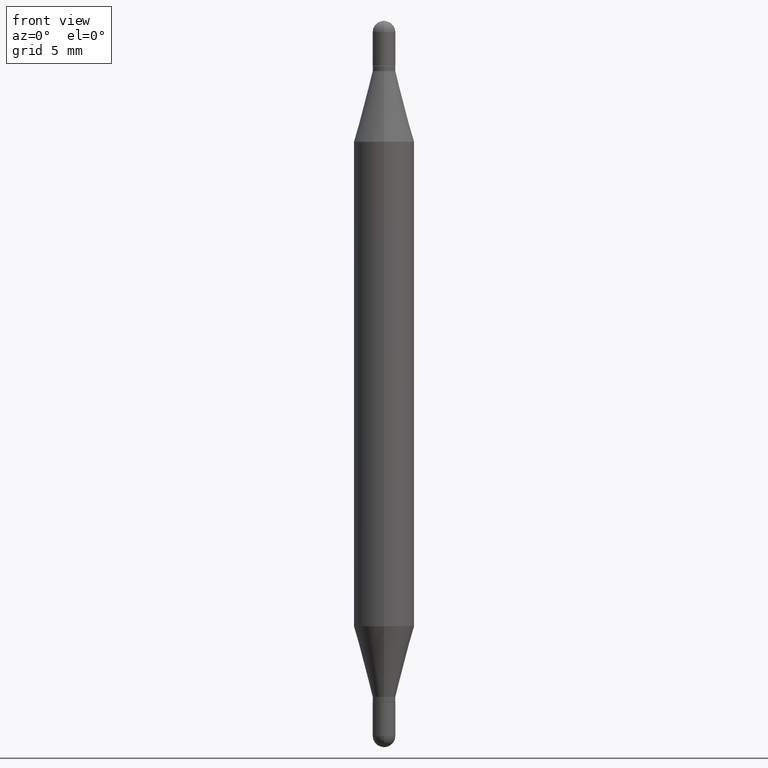
[diagram: clean part render]
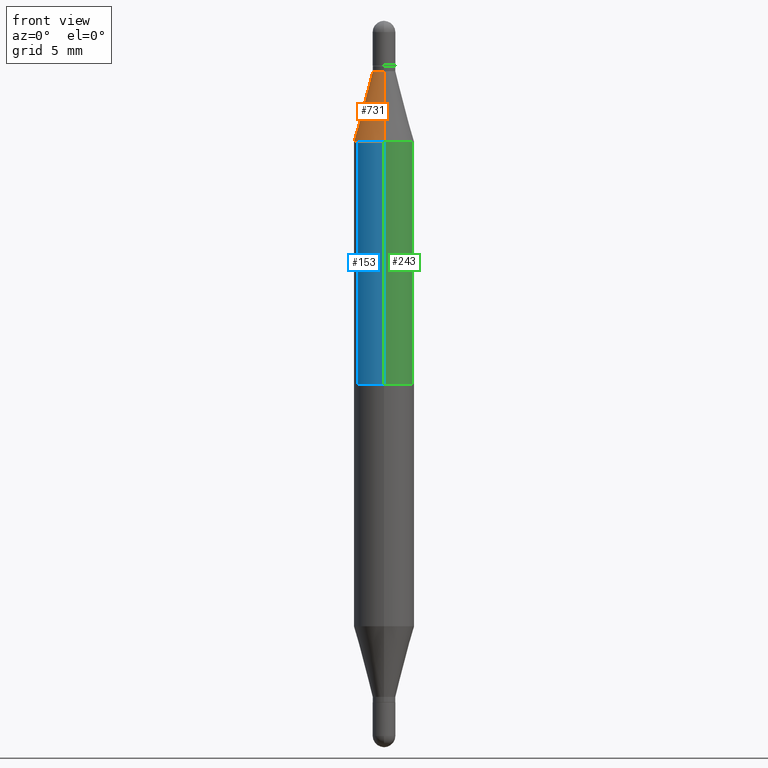
[diagram: same view with three faces highlighted in distinct colors, each labeled with its STEP entity id]
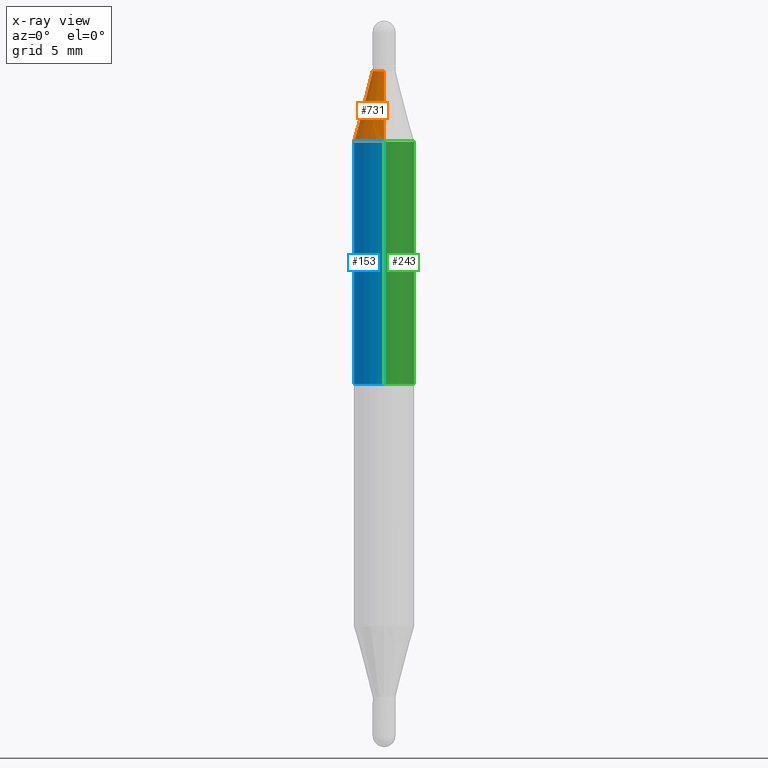
[diagram: x-ray of the same camera — body ghosted, the three highlighted faces saturated]
A machine part, front view with three faces highlighted in distinct colors.
The next image is the same camera in x-ray (body ghosted, the three faces saturated) — at least one of them is partly hidden behind the body in this view.
Their STEP definitions:

[orange] entity #731 — the highlighted conical surface has half-angle 15 deg.
#24 = EDGE_CURVE ( 'NONE', #573, #770, #670, .T. ) ;
#30 = EDGE_CURVE ( 'NONE', #675, #843, #807, .T. ) ;
#35 = CARTESIAN_POINT ( 'NONE',  ( 3.414017849035659863E-29, -3.705747078021827002E-16, -0.1040000000000000369 ) ) ;
#61 = CARTESIAN_POINT ( 'NONE',  ( 3.057608608953349206E-29, -8.777032717339053700E-16, -0.2497365840355653399 ) ) ;
#84 = ORIENTED_EDGE ( 'NONE', *, *, #890, .F. ) ;
#106 = CARTESIAN_POINT ( 'NONE',  ( 3.414017849035659863E-29, -3.705747078021827002E-16, -0.1040000000000000369 ) ) ;
#110 = AXIS2_PLACEMENT_3D ( 'NONE', #106, #708, #508 ) ;
#146 = CARTESIAN_POINT ( 'NONE',  ( -1.637504747917063431E-16, -0.02345000000000002291, -0.1039999999999999536 ) ) ;
#178 = CARTESIAN_POINT ( 'NONE',  ( 4.287811248607512417E-16, 0.06249999999999911876, -0.2497365840355655620 ) ) ;
#218 = DIRECTION ( 'NONE',  ( 2.445571525097176627E-29, 3.479761566306266964E-15, 1.000000000000000000 ) ) ;
#232 = ORIENTED_EDGE ( 'NONE', *, *, #663, .T. ) ;
#269 = AXIS2_PLACEMENT_3D ( 'NONE', #35, #367, #385 ) ;
#294 = CONICAL_SURFACE ( 'NONE', #110, 0.02344999999999965168, 0.2617993877991505736 ) ;
#323 = EDGE_LOOP ( 'NONE', ( #1106, #232, #897, #84 ) ) ;
#367 = DIRECTION ( 'NONE',  ( 2.445571525097176627E-29, 3.479761566306266964E-15, 1.000000000000000000 ) ) ;
#385 = DIRECTION ( 'NONE',  ( -6.982962677686265133E-15, -1.000000000000000000, 3.640522379616609463E-15 ) ) ;
#393 = DIRECTION ( 'NONE',  ( -6.982962677686265922E-15, -1.000000000000000000, 3.278217592397115862E-15 ) ) ;
#395 = LINE ( 'NONE', #146, #439 ) ;
#439 = VECTOR ( 'NONE', #554, 39.37007874015748143 ) ;
#441 = FACE_OUTER_BOUND ( 'NONE', #323, .T. ) ;
#456 = DIRECTION ( 'NONE',  ( 1.775627540710967075E-15, 0.2588190451025184635, -0.9659258262890689783 ) ) ;
#467 = CARTESIAN_POINT ( 'NONE',  ( 1.608786780477752056E-16, 0.02344999999999928045, -0.1040000000000001201 ) ) ;
#508 = DIRECTION ( 'NONE',  ( -6.982962677686265133E-15, -1.000000000000000000, 3.640522379616609463E-15 ) ) ;
#554 = DIRECTION ( 'NONE',  ( -1.807323732225332111E-15, -0.2588190451025252359, -0.9659258262890670910 ) ) ;
#573 = VERTEX_POINT ( 'NONE', #467 ) ;
#578 = LINE ( 'NONE', #1095, #1000 ) ;
#663 = EDGE_CURVE ( 'NONE', #573, #675, #578, .T. ) ;
#670 = CIRCLE ( 'NONE', #269, 0.02344999999999965168 ) ;
#675 = VERTEX_POINT ( 'NONE', #178 ) ;
#708 = DIRECTION ( 'NONE',  ( -2.445571525097176627E-29, -3.479761566306266964E-15, -1.000000000000000000 ) ) ;
#731 = ADVANCED_FACE ( 'NONE', ( #441 ), #294, .T. ) ;
#770 = VERTEX_POINT ( 'NONE', #787 ) ;
#787 = CARTESIAN_POINT ( 'NONE',  ( -1.637504747917063431E-16, -0.02345000000000002291, -0.1039999999999999536 ) ) ;
#807 = CIRCLE ( 'NONE', #892, 0.06250000000000000000 ) ;
#843 = VERTEX_POINT ( 'NONE', #1064 ) ;
#890 = EDGE_CURVE ( 'NONE', #770, #843, #395, .T. ) ;
#892 = AXIS2_PLACEMENT_3D ( 'NONE', #61, #218, #393 ) ;
#897 = ORIENTED_EDGE ( 'NONE', *, *, #30, .T. ) ;
#1000 = VECTOR ( 'NONE', #456, 39.37007874015748854 ) ;
#1064 = CARTESIAN_POINT ( 'NONE',  ( -4.364351673553610517E-16, -0.06250000000000087430, -0.2497365840355651456 ) ) ;
#1095 = CARTESIAN_POINT ( 'NONE',  ( 1.608786780477741210E-16, 0.02344999999999928045, -0.1040000000000001201 ) ) ;
#1106 = ORIENTED_EDGE ( 'NONE', *, *, #24, .F. ) ;

[blue] entity #153 — the highlighted cylindrical surface (edge-blend (fillet) strip) has radius 1.5875 mm, axis along (-0, -0, -1).
#30 = EDGE_CURVE ( 'NONE', #675, #843, #807, .T. ) ;
#42 = CARTESIAN_POINT ( 'NONE',  ( 4.287811248607451280E-16, 0.06249999999999737710, -0.7500000000000004441 ) ) ;
#61 = CARTESIAN_POINT ( 'NONE',  ( 3.057608608953349206E-29, -8.777032717339053700E-16, -0.2497365840355653399 ) ) ;
#78 = ORIENTED_EDGE ( 'NONE', *, *, #676, .T. ) ;
#94 = CARTESIAN_POINT ( 'NONE',  ( 4.287811248607206733E-16, 0.06249999999999477501, -1.500000000000000666 ) ) ;
#153 = ADVANCED_FACE ( 'NONE', ( #556 ), #1090, .T. ) ;
#167 = AXIS2_PLACEMENT_3D ( 'NONE', #325, #999, #752 ) ;
#169 = VECTOR ( 'NONE', #679, 39.37007874015748143 ) ;
#178 = CARTESIAN_POINT ( 'NONE',  ( 4.287811248607512417E-16, 0.06249999999999911876, -0.2497365840355655620 ) ) ;
#211 = DIRECTION ( 'NONE',  ( -2.445571525097176627E-29, -3.479761566306266964E-15, -1.000000000000000000 ) ) ;
#218 = DIRECTION ( 'NONE',  ( 2.445571525097176627E-29, 3.479761566306266964E-15, 1.000000000000000000 ) ) ;
#267 = ORIENTED_EDGE ( 'NONE', *, *, #30, .F. ) ;
#303 = CARTESIAN_POINT ( 'NONE',  ( -4.364351673553916201E-16, -0.06250000000000521805, -1.500000000000000222 ) ) ;
#315 = VERTEX_POINT ( 'NONE', #42 ) ;
#325 = CARTESIAN_POINT ( 'NONE',  ( 0.000000000000000000, -5.228321854365732350E-15, -1.500000000000000444 ) ) ;
#393 = DIRECTION ( 'NONE',  ( -6.982962677686265922E-15, -1.000000000000000000, 3.278217592397115862E-15 ) ) ;
#436 = VECTOR ( 'NONE', #211, 39.37007874015748143 ) ;
#505 = LINE ( 'NONE', #94, #436 ) ;
#556 = FACE_OUTER_BOUND ( 'NONE', #915, .T. ) ;
#662 = CARTESIAN_POINT ( 'NONE',  ( -4.364351673553732791E-16, -0.06250000000000262290, -0.7499999999999998890 ) ) ;
#666 = EDGE_CURVE ( 'NONE', #843, #938, #1070, .T. ) ;
#675 = VERTEX_POINT ( 'NONE', #178 ) ;
#676 = EDGE_CURVE ( 'NONE', #675, #315, #505, .T. ) ;
#679 = DIRECTION ( 'NONE',  ( -2.445571525097176627E-29, -3.479761566306266964E-15, -1.000000000000000000 ) ) ;
#682 = DIRECTION ( 'NONE',  ( -0.000000000000000000, -3.485547902910486918E-15, -1.000000000000000000 ) ) ;
#694 = DIRECTION ( 'NONE',  ( 0.000000000000000000, 1.000000000000000000, -4.370956789862821150E-15 ) ) ;
#745 = EDGE_CURVE ( 'NONE', #938, #315, #748, .T. ) ;
#748 = CIRCLE ( 'NONE', #914, 0.06250000000000000000 ) ;
#752 = DIRECTION ( 'NONE',  ( -6.982962677686265922E-15, -1.000000000000000000, 4.370956789862821150E-15 ) ) ;
#759 = ORIENTED_EDGE ( 'NONE', *, *, #745, .F. ) ;
#807 = CIRCLE ( 'NONE', #892, 0.06250000000000000000 ) ;
#843 = VERTEX_POINT ( 'NONE', #1064 ) ;
#879 = ORIENTED_EDGE ( 'NONE', *, *, #666, .F. ) ;
#892 = AXIS2_PLACEMENT_3D ( 'NONE', #61, #218, #393 ) ;
#914 = AXIS2_PLACEMENT_3D ( 'NONE', #966, #682, #694 ) ;
#915 = EDGE_LOOP ( 'NONE', ( #267, #78, #759, #879 ) ) ;
#938 = VERTEX_POINT ( 'NONE', #662 ) ;
#966 = CARTESIAN_POINT ( 'NONE',  ( 1.834178643822883031E-29, -2.618500679636030746E-15, -0.7500000000000002220 ) ) ;
#999 = DIRECTION ( 'NONE',  ( -2.445571525097176627E-29, -3.479761566306266964E-15, -1.000000000000000000 ) ) ;
#1064 = CARTESIAN_POINT ( 'NONE',  ( -4.364351673553610517E-16, -0.06250000000000087430, -0.2497365840355651456 ) ) ;
#1070 = LINE ( 'NONE', #303, #169 ) ;
#1090 = CYLINDRICAL_SURFACE ( 'NONE', #167, 0.06250000000000000000 ) ;

[green] entity #243 — the highlighted cylindrical surface (edge-blend (fillet) strip) has radius 1.5875 mm, axis along (-0, -0, -1).
#42 = CARTESIAN_POINT ( 'NONE',  ( 4.287811248607451280E-16, 0.06249999999999737710, -0.7500000000000004441 ) ) ;
#94 = CARTESIAN_POINT ( 'NONE',  ( 4.287811248607206733E-16, 0.06249999999999477501, -1.500000000000000666 ) ) ;
#119 = ORIENTED_EDGE ( 'NONE', *, *, #1034, .F. ) ;
#168 = DIRECTION ( 'NONE',  ( -6.982962677686265922E-15, -1.000000000000000000, 4.370956789862821150E-15 ) ) ;
#169 = VECTOR ( 'NONE', #679, 39.37007874015748143 ) ;
#178 = CARTESIAN_POINT ( 'NONE',  ( 4.287811248607512417E-16, 0.06249999999999911876, -0.2497365840355655620 ) ) ;
#179 = FACE_OUTER_BOUND ( 'NONE', #1109, .T. ) ;
#211 = DIRECTION ( 'NONE',  ( -2.445571525097176627E-29, -3.479761566306266964E-15, -1.000000000000000000 ) ) ;
#226 = DIRECTION ( 'NONE',  ( 0.000000000000000000, 1.000000000000000000, -4.370956789862821150E-15 ) ) ;
#236 = AXIS2_PLACEMENT_3D ( 'NONE', #763, #337, #168 ) ;
#243 = ADVANCED_FACE ( 'NONE', ( #179 ), #410, .T. ) ;
#257 = ORIENTED_EDGE ( 'NONE', *, *, #666, .T. ) ;
#303 = CARTESIAN_POINT ( 'NONE',  ( -4.364351673553916201E-16, -0.06250000000000521805, -1.500000000000000222 ) ) ;
#315 = VERTEX_POINT ( 'NONE', #42 ) ;
#332 = AXIS2_PLACEMENT_3D ( 'NONE', #645, #989, #226 ) ;
#337 = DIRECTION ( 'NONE',  ( -2.445571525097176627E-29, -3.479761566306266964E-15, -1.000000000000000000 ) ) ;
#389 = CARTESIAN_POINT ( 'NONE',  ( 3.057608608953349206E-29, -8.777032717339053700E-16, -0.2497365840355653399 ) ) ;
#391 = AXIS2_PLACEMENT_3D ( 'NONE', #389, #564, #482 ) ;
#404 = CIRCLE ( 'NONE', #332, 0.06250000000000000000 ) ;
#410 = CYLINDRICAL_SURFACE ( 'NONE', #236, 0.06250000000000000000 ) ;
#436 = VECTOR ( 'NONE', #211, 39.37007874015748143 ) ;
#482 = DIRECTION ( 'NONE',  ( -6.982962677686265922E-15, -1.000000000000000000, 3.278217592397115862E-15 ) ) ;
#505 = LINE ( 'NONE', #94, #436 ) ;
#564 = DIRECTION ( 'NONE',  ( 2.445571525097176627E-29, 3.479761566306266964E-15, 1.000000000000000000 ) ) ;
#645 = CARTESIAN_POINT ( 'NONE',  ( 1.834178643822883031E-29, -2.618500679636030746E-15, -0.7500000000000002220 ) ) ;
#662 = CARTESIAN_POINT ( 'NONE',  ( -4.364351673553732791E-16, -0.06250000000000262290, -0.7499999999999998890 ) ) ;
#666 = EDGE_CURVE ( 'NONE', #843, #938, #1070, .T. ) ;
#675 = VERTEX_POINT ( 'NONE', #178 ) ;
#676 = EDGE_CURVE ( 'NONE', #675, #315, #505, .T. ) ;
#679 = DIRECTION ( 'NONE',  ( -2.445571525097176627E-29, -3.479761566306266964E-15, -1.000000000000000000 ) ) ;
#681 = ORIENTED_EDGE ( 'NONE', *, *, #932, .F. ) ;
#763 = CARTESIAN_POINT ( 'NONE',  ( 0.000000000000000000, -5.228321854365732350E-15, -1.500000000000000444 ) ) ;
#830 = ORIENTED_EDGE ( 'NONE', *, *, #676, .F. ) ;
#843 = VERTEX_POINT ( 'NONE', #1064 ) ;
#932 = EDGE_CURVE ( 'NONE', #843, #675, #1021, .T. ) ;
#938 = VERTEX_POINT ( 'NONE', #662 ) ;
#989 = DIRECTION ( 'NONE',  ( -0.000000000000000000, -3.485547902910486918E-15, -1.000000000000000000 ) ) ;
#1021 = CIRCLE ( 'NONE', #391, 0.06250000000000000000 ) ;
#1034 = EDGE_CURVE ( 'NONE', #315, #938, #404, .T. ) ;
#1064 = CARTESIAN_POINT ( 'NONE',  ( -4.364351673553610517E-16, -0.06250000000000087430, -0.2497365840355651456 ) ) ;
#1070 = LINE ( 'NONE', #303, #169 ) ;
#1109 = EDGE_LOOP ( 'NONE', ( #830, #681, #257, #119 ) ) ;